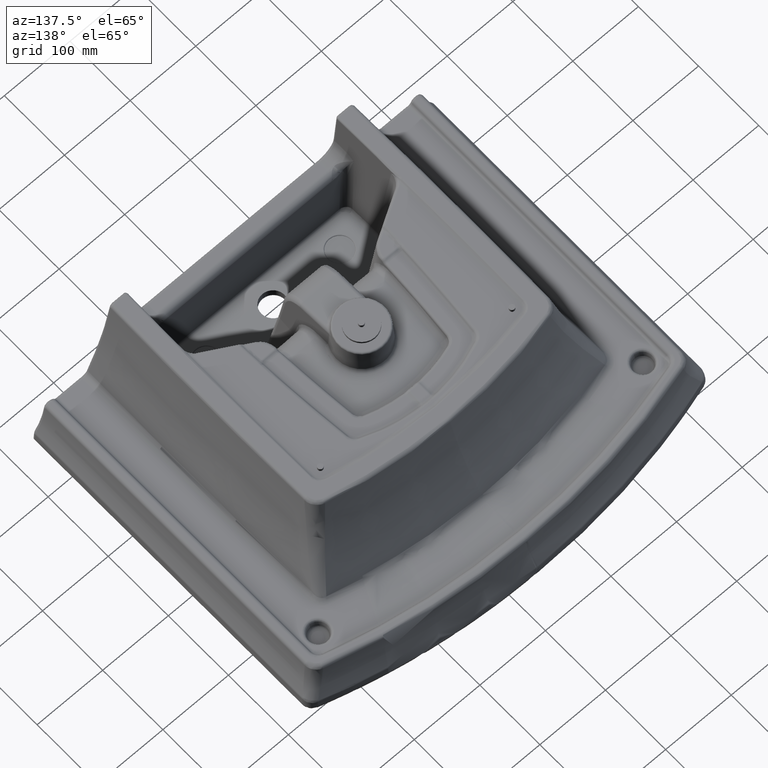
[diagram: clean part render]
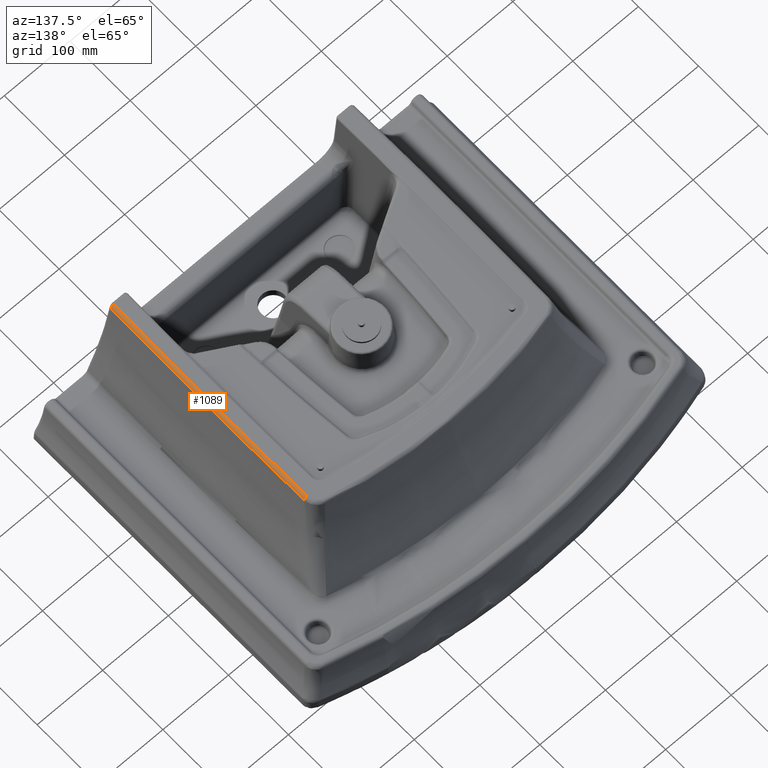
[diagram: same view with one face highlighted and labeled with its STEP entity id]
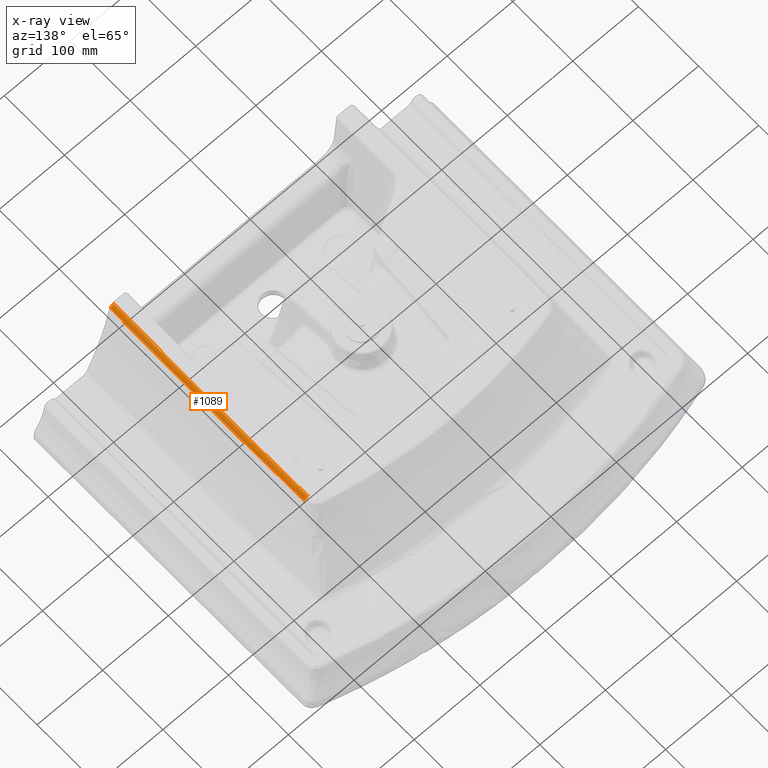
[diagram: x-ray of the same camera — body ghosted, the highlighted face saturated]
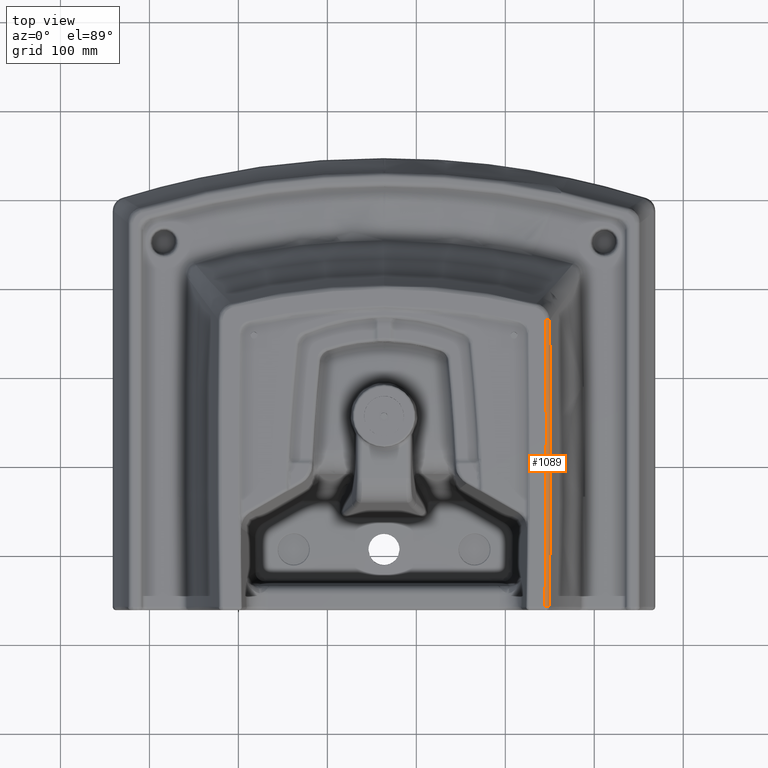
[diagram: same view with one face highlighted and labeled with its STEP entity id]
A machine part, auxiliary view. The second image highlights one B-rep face of the part: STEP entity #1089.
The next image is the same camera in x-ray: the body ghosted, the highlighted face saturated — about 0% of this face is hidden behind the body in this view.
A second angle (top view) of the same face is appended — the face is thin or edge-on in the first view.
In plain terms, the highlighted toroidal blend (fillet) surface has major radius 9995.83 mm and minor (blend) radius 5 mm.
Its self-contained STEP definition (entity closure, byte-faithful):
#433=TOROIDAL_SURFACE('',#7538,9995.82499822302,5.00000000000001);
#608=CIRCLE('',#7332,9995.82499822302);
#695=CIRCLE('',#7537,10000.74047797);
#1089=ADVANCED_FACE('',(#1617),#433,.T.);
#1617=FACE_OUTER_BOUND('',#2087,.T.);
#2087=EDGE_LOOP('',(#3702,#3703,#3704,#3705));
#3702=ORIENTED_EDGE('',*,*,#6131,.T.);
#3703=ORIENTED_EDGE('',*,*,#6088,.T.);
#3704=ORIENTED_EDGE('',*,*,#5539,.F.);
#3705=ORIENTED_EDGE('',*,*,#5993,.T.);
#4852=VERTEX_POINT('',#9972);
#4853=VERTEX_POINT('',#9974);
#5143=VERTEX_POINT('',#17750);
#5201=VERTEX_POINT('',#19236);
#5539=EDGE_CURVE('',#4852,#4853,#608,.T.);
#5993=EDGE_CURVE('',#4852,#5143,#6903,.T.);
#6088=EDGE_CURVE('',#5201,#4853,#6961,.T.);
#6131=EDGE_CURVE('',#5143,#5201,#695,.T.);
#6903=B_SPLINE_CURVE_WITH_KNOTS('',3,(#17751,#17752,#17753,#17754,#17755,
#17756),.UNSPECIFIED.,.F.,.F.,(4,2,4),(0.,0.5,1.),.UNSPECIFIED.);
#6961=B_SPLINE_CURVE_WITH_KNOTS('',3,(#19309,#19310,#19311,#19312,#19313,
#19314),.UNSPECIFIED.,.F.,.F.,(4,2,4),(0.,0.5,1.),.UNSPECIFIED.);
#7332=AXIS2_PLACEMENT_3D('',#9973,#7742,#7743);
#7537=AXIS2_PLACEMENT_3D('',#19972,#8201,#8202);
#7538=AXIS2_PLACEMENT_3D('',#19978,#8204,#8205);
#7742=DIRECTION('',(0.,-1.,-1.04083408558608E-017));
#7743=DIRECTION('',(0.999890588073561,0.,0.0147922913001194));
#8201=DIRECTION('',(0.,-1.,-1.04083408558608E-017));
#8202=DIRECTION('',(0.999890588074105,0.,0.0147922912633601));
#8204=DIRECTION('',(0.,1.,1.04083408558608E-017));
#8205=DIRECTION('',(-0.999823019060214,3.46916074680847E-019,-0.0188130422133103));
#9972=CARTESIAN_POINT('',(189.368526362928,-16.0535991845949,-210.423610216724));
#9973=CARTESIAN_POINT('',(-9804.93677836275,-16.0535991845949,-36.1282544775615));
#9974=CARTESIAN_POINT('',(189.794557391261,-16.0535991845949,111.732900681239));
#17750=CARTESIAN_POINT('',(194.283927068453,-11.9690547502549,-210.470996751902));
#17751=CARTESIAN_POINT('',(189.368526362928,-16.0535991845949,-210.423610216724));
#17752=CARTESIAN_POINT('',(190.535790286587,-16.0535991845945,-210.438998558883));
#17753=CARTESIAN_POINT('',(191.671434533704,-15.641659581474,-210.452213641193));
#17754=CARTESIAN_POINT('',(193.4607204808,-14.153093545887,-210.469455064525));
#17755=CARTESIAN_POINT('',(194.070126864323,-13.1166726636268,-210.473069812435));
#17756=CARTESIAN_POINT('',(194.283927064929,-11.9690547496008,-210.470996751841));
#19236=CARTESIAN_POINT('',(194.709499327961,-11.9690547502549,111.805611521839));
#19309=CARTESIAN_POINT('',(194.709499324967,-11.9690547501798,111.805611696885));
#19310=CARTESIAN_POINT('',(194.497950541917,-13.1050766204481,111.802482063247));
#19311=CARTESIAN_POINT('',(193.878393346747,-14.1606785526672,111.793316389917));
#19312=CARTESIAN_POINT('',(192.101066257621,-15.6377197002829,111.767022773078));
#19313=CARTESIAN_POINT('',(190.949986401274,-16.0535991845033,111.749993801383));
#19314=CARTESIAN_POINT('',(189.794557394105,-16.0535991845949,111.732900488742));
#19972=CARTESIAN_POINT('',(-9804.93677836275,-11.9690547502549,-36.1282544775615));
#19978=CARTESIAN_POINT('',(-9804.93677836275,-11.0535991845949,-36.1282544775615));